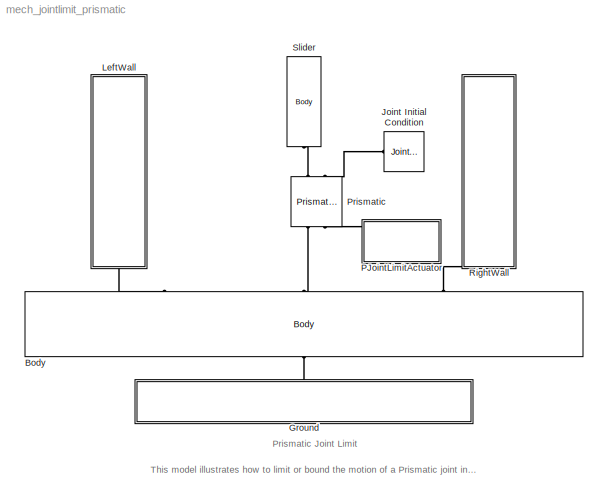
MODEL mech_jointlimit_prismatic
KIND model
BLOCK [Reference] Body  REF=mblibv1/Bodies/Body
  AttachedToCS = 1
  BodyColor = [0.5 0.5 0.5]
  CG = Right$CG$[0 0 0]$Adjoining$Adjoining$m$[0 0 0]$Euler X-Y-Z$deg$WORLD$true
  CGPos = [0 0 0]
  CGRot = [0 0 0]
  CS0Pos = []
  CS0Rot = []
  CS10Pos = []
  CS10Rot = []
  CS11Pos = []
  CS11Rot = []
  CS12Pos = []
  CS12Rot = []
  CS13Pos = []
  CS13Rot = []
  CS14Pos = []
  CS14Rot = []
  CS15Pos = []
  CS15Rot = []
  CS16Pos = []
  CS16Rot = []
  CS17Pos = []
  CS17Rot = []
  CS18Pos = []
  CS18Rot = []
  CS19Pos = []
  CS19Rot = []
  CS1Pos = [0 0 0]
  CS1Rot = [0 0 0]
  CS20Pos = []
  CS20Rot = []
  CS2Pos = [-1.5 0 0]
  CS2Rot = [0 0 0]
  CS3Pos = [1.5 -0.5 0]
  CS3Rot = [0 0 0]
  CS4Pos = [-1.5 -0.5 0]
  CS4Rot = [0 0 0]
  CS5Pos = [1.5 0 0]
  CS5Rot = [0 0 0]
  CS6Pos = []
  CS6Rot = []
  CS7Pos = []
  CS7Rot = []
  CS8Pos = []
  CS8Rot = []
  CS9Pos = []
  CS9Rot = []
  ClassName = Body
  Density = 1
  DensityUnits = kg/m^3
  DensityUse = false
  DialogClass = MechanicalBodyBlock
  DialogController = MECH.DynMechDlgSource
  GraphicsMode = 1
  GraphicsObj = []
  Inertia = [0.05 0 0;0 0.75 0;0 0 0.705]
  InertiaUnits = kg*m^2
  LConnTagsString = CS2|CS1|CS5
  LeftPortType = workingframe
  Mass = 1
  MassUnits = kg
  PhysicalDomain = mechanical
  Ports = [0, 0, 0, 0, 0, 3, 1]
  RConnTagsString = CG
  RightPortType = workingframe
  Shape = Cylinder
  ShapeDims = [1 1]
  ShapeUnits = m
  ShapeUse = false
  SourceBlock = mblibv1/Bodies/Body
  SourceType = Body
  SubClassName = Unknown
  WorkingFrames = Left$CS2$[-1.5 0 0]$CS1$CS1$m$[0 0 0]$Euler X-Y-Z$deg$WORLD$true#Left$CS1$[0 0 0]$CG$CG$m$[0 0 0]$Euler X-Y-Z$deg$WORLD$true#Right$CS4$[-1.5 -0.5 0]$CS1$CS1$m$[0 0 0]$Euler X-Y-Z$deg$WORLD$false#Right$CS3$[1.5 -0.5 0]$CS1$CS1$m$[0 0 0]$Euler X-Y-Z$deg$WORLD$false#Left$CS5$[1.5 0 0]$CS1$CS1$m$[0 0 0]$Euler X-Y-Z$deg$WORLD$true
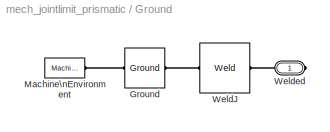
BLOCK [SubSystem] Ground
  FunctionWithSeparateData = off
  MaskHideContents = off
  MinAlgLoopOccurrences = off
  Opaque = off
  Ports = [0, 0, 0, 0, 0, 0, 1]
  PropExecContextOutsideSubsystem = off
  RTWSystemCode = Auto
  RequestExecContextInheritance = off
BLOCK [Reference] Ground/Ground  REF=mblibv1/Bodies/Ground
  ClassName = Ground
  CoordPosition = [0 0 0]
  CoordPositionUnits = m
  DialogClass = GroundBlock
  DialogController = MECH.DynMechDlgSource
  FunctionWithSeparateData = off
  LeftPortType = env
  MachineId = [0 0]
  PhysicalDomain = Mechanical
  Ports = [0, 0, 0, 0, 0, 1, 1]
  RTWMemSecDataConstants = Inherit from model
  RTWMemSecDataInternal = Inherit from model
  RTWMemSecDataParameters = Inherit from model
  RTWMemSecFuncExecute = Inherit from model
  RTWMemSecFuncInitTerm = Inherit from model
  RightPortType = workingframe
  ShowEnvPort = on
  ShowPortLabels = FromPortIcon
  SourceBlock = mblibv1/Bodies/Ground
  SourceType = Ground
  StateVectorMgrId = -1
  SystemSampleTime = -1
  UserData = DataTag0
  UserDataPersistent = on
BLOCK [Reference] Ground/Machine\nEnvironment  REF=mblibv1/Bodies/Machine\nEnvironment
  AnalysisType = Forward dynamics
  AngularAssemblyTolerance = 1e-3
  AngularAssemblyToleranceUnits = rad
  ClassName = Environment
  ConstraintAbsTolerance = 1e-4
  ConstraintRelTolerance = 1e-4
  ConstraintSolverType = Stabilizing
  DialogController = MECH.DialogSource
  DialogTemplateClass = MECH.MachineEnvironment
  Dimensionality = Auto-detect
  FunctionWithSeparateData = off
  Gravity = [0 -9.81 0]
  GravityAsSignal = off
  GravityUnits = m/s^2
  LinearAssemblyTolerance = 1e-3
  LinearAssemblyToleranceUnits = m
  PerturbationSize = 1e-5
  PhysicalDomain = Mechanical
  PortType = env
  Ports = [0, 0, 0, 0, 0, 0, 1]
  RTWMemSecDataConstants = Inherit from model
  RTWMemSecDataInternal = Inherit from model
  RTWMemSecDataParameters = Inherit from model
  RTWMemSecFuncExecute = Inherit from model
  RTWMemSecFuncInitTerm = Inherit from model
  RedundancyAnalysisTolerance = 1e-14
  RedundancyAnalysisToleranceType = Automatically select tolerance
  ShowPortLabels = FromPortIcon
  SourceBlock = mblibv1/Bodies/Machine\nEnvironment
  SourceType = Machine Environment
  StatePerturbationType = Fixed
  SyncWhenCopied = off
  SystemSampleTime = -1
  Tag = Factory ground
  UseRobustSingularityHandling = off
  VisualizeMachine = on
BLOCK [Reference] Ground/WeldJ  REF=mblibv1/Joints/Weld
  ClassName = Joint
  CutJoint = off
  DialogClass = JointBlock
  DialogController = MECH.DynMechDlgSource
  LConnTagsString = __newl0
  LeftPortType = blob
  MarkAsCut = off
  NumSAPorts = 0
  PhysicalDomain = mechanical
  Ports = [0, 0, 0, 0, 0, 1, 1]
  PrimitiveProps = W$WORLD$[0 0 0]$weld
  Primitives = weld
  RConnTagsString = __newr0
  RightPortType = blob
  SourceBlock = mblibv1/Joints/Weld
  SourceType = Weld
  SubClassName = Unknown
  WAxis = [0 0 0]
BLOCK [PMIOPort] Ground/Welded
  Port = 1
  Side = Right
BLOCK [Reference] Joint Initial Condition  REF=mblibv1/Sensors & \nActuators/Joint Initial Condition
  ClassName = InitialCondition
  DialogClass = InitialConditionBlock
  DialogController = MECH.DynMechDlgSource
  FunctionWithSeparateData = off
  InitialConditions = P1$true$0$m$deg$1$m/s$deg/s#P2$false$0$m$deg$0$m/s$deg/s#P3$false$0$m$deg$0$m/s$deg/s#R1$false$0$m$deg$0$m/s$deg/s#R2$false$0$m$deg$0$m/s$deg/s#R3$false$0$m$deg$0$m/s$deg/s#S$false$0$m$deg$0$m/s$deg/s
  P1PIC = 0
  P1VIC = 1
  P2PIC = 0
  P2VIC = 0
  P3PIC = 0
  P3VIC = 0
  PhysicalDomain = mechanical
  Ports = [0, 0, 0, 0, 0, 0, 1]
  R1PIC = 0
  R1VIC = 0
  R2PIC = 0
  R2VIC = 0
  R3PIC = 0
  R3VIC = 0
  RTWMemSecDataConstants = Inherit from model
  RTWMemSecDataInternal = Inherit from model
  RTWMemSecDataParameters = Inherit from model
  RTWMemSecFuncExecute = Inherit from model
  RTWMemSecFuncInitTerm = Inherit from model
  SPIC = 0
  SVIC = 0
  ShowPortLabels = FromPortIcon
  SourceBlock = mblibv1/Sensors & \nActuators/Joint Initial Condition
  SourceType = Joint Initial Condition
  SystemSampleTime = -1
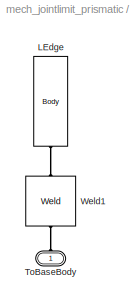
BLOCK [SubSystem] LeftWall
  FunctionWithSeparateData = off
  MaskHideContents = off
  MinAlgLoopOccurrences = off
  Opaque = off
  Ports = [0, 0, 0, 0, 0, 1]
  PropExecContextOutsideSubsystem = off
  RTWSystemCode = Auto
  RequestExecContextInheritance = off
BLOCK [Reference] LeftWall/LEdge  REF=mblibv1/Bodies/Body
  AttachedToCS = 1
  BodyColor = [0.5 0.5 0.5]
  CG = Right$CG$[0.4 0.5 0]$CS1$CS1$m$[0 0 0]$Euler X-Y-Z$deg$WORLD$false
  CGPos = [0.4 0.5 0]
  CGRot = [0 0 0]
  CS0Pos = []
  CS0Rot = []
  CS10Pos = []
  CS10Rot = []
  CS11Pos = []
  CS11Rot = []
  CS12Pos = []
  CS12Rot = []
  CS13Pos = []
  CS13Rot = []
  CS14Pos = []
  CS14Rot = []
  CS15Pos = []
  CS15Rot = []
  CS16Pos = []
  CS16Rot = []
  CS17Pos = []
  CS17Rot = []
  CS18Pos = []
  CS18Rot = []
  CS19Pos = []
  CS19Rot = []
  CS1Pos = [0 0 0]
  CS1Rot = [0 0 0]
  CS20Pos = []
  CS20Rot = []
  CS2Pos = [0 1 0]
  CS2Rot = [0 0 0]
  CS3Pos = [0.5 0 0]
  CS3Rot = [0 0 0]
  CS4Pos = [0.5 1 0]
  CS4Rot = [0 0 0]
  CS5Pos = []
  CS5Rot = []
  CS6Pos = []
  CS6Rot = []
  CS7Pos = []
  CS7Rot = []
  CS8Pos = []
  CS8Rot = []
  CS9Pos = []
  CS9Rot = []
  ClassName = Body
  Density = 1
  DensityUnits = kg/m^3
  DensityUse = false
  DialogClass = MechanicalBodyBlock
  DialogController = MECH.DynMechDlgSource
  GraphicsMode = 1
  GraphicsObj = []
  Inertia = [0.75 0 0;0 0.05 0;0 0 0.705]*0.02
  InertiaUnits = kg*m^2
  LeftPortType = workingframe
  Mass = 0.2
  MassUnits = kg
  PhysicalDomain = mechanical
  Ports = [0, 0, 0, 0, 0, 0, 1]
  RConnTagsString = CS1
  RightPortType = workingframe
  Shape = Cylinder
  ShapeDims = [1 1]
  ShapeUnits = m
  ShapeUse = false
  SourceBlock = mblibv1/Bodies/Body
  SourceType = Body
  SubClassName = Unknown
  WorkingFrames = Right$CS1$[0 0 0]$Adjoining$Adjoining$m$[0 0 0]$Euler X-Y-Z$deg$WORLD$true#Left$CS2$[0 1 0]$CS1$CS1$m$[0 0 0]$Euler X-Y-Z$deg$WORLD$false#Right$CS4$[0.5 1 0]$CS1$CS1$m$[0 0 0]$Euler X-Y-Z$deg$WORLD$false#Right$CS3$[0.5 0 0]$CS1$CS1$m$[0 0 0]$Euler X-Y-Z$deg$WORLD$false
BLOCK [PMIOPort] LeftWall/ToBaseBody
  Port = 1
  Side = Left
BLOCK [Reference] LeftWall/Weld1  REF=mblibv1/Joints/Weld
  ClassName = Joint
  CutJoint = off
  DialogClass = JointBlock
  DialogController = MECH.DynMechDlgSource
  LConnTagsString = __newl0
  LeftPortType = blob
  MarkAsCut = off
  NumSAPorts = 0
  PhysicalDomain = mechanical
  Ports = [0, 0, 0, 0, 0, 1, 1]
  PrimitiveProps = W$WORLD$[0 0 0]$weld
  Primitives = weld
  RConnTagsString = __newr0
  RightPortType = blob
  SourceBlock = mblibv1/Joints/Weld
  SourceType = Weld
  SubClassName = Unknown
  WAxis = [0 0 0]
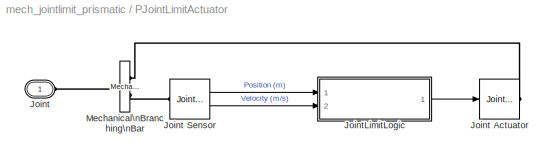
BLOCK [SubSystem] PJointLimitActuator
  FunctionWithSeparateData = off
  MaskCallbackString = ||||
  MaskEnableString = on,on,on,on,on
  MaskHideContents = off
  MaskIconFrame = on
  MaskIconOpaque = on
  MaskIconRotate = none
  MaskIconUnits = autoscale
  MaskPromptString = LHS Joint Limit (m)|RHS Joint Limit (m)|Penetration Depth (m)|Spring Constant (N/m)|Damping Constant (Ns/m)
  MaskStyleString = edit,edit,edit,edit,edit
  MaskTabNameString = ,,,,
  MaskToolTipString = on,on,on,on,on
  MaskTunableValueString = on,on,on,on,on
  MaskType = Joint Limit
  MaskValueString = 1|1|0.0005|2000|0.05
  MaskVarAliasString = ,,,,
  MaskVariables = LHSLimit=@1;RHSLimit=@2;penDepth=@3;springC=@4;dampC=@5;
  MaskVisibilityString = on,on,on,on,on
  MinAlgLoopOccurrences = off
  Opaque = off
  Ports = [0, 0, 0, 0, 0, 1]
  PropExecContextOutsideSubsystem = off
  RTWSystemCode = Auto
  RequestExecContextInheritance = off
BLOCK [PMIOPort] PJointLimitActuator/Joint
  Port = 1
  Side = Left
  Tag = PMCPort
BLOCK [Reference] PJointLimitActuator/Joint Actuator  REF=mblibv1/Sensors & \nActuators/Joint Actuator
  AccelerationUnits = m/s^2
  ActiveIO = on
  ActuationStyle = Force
  AngleUnits = deg
  ArcAccelerationUnits = deg/s^2
  ArcVelocityUnits = deg/s
  ClassName = JointActuator
  CoordPositionUnits = m
  DialogClass = MechanicalActuatorBlock
  DialogController = MECH.DynMechDlgSource
  ForceUnits = N
  FunctionWithSeparateData = off
  PhysicalDomain = Mechanical
  PortType = blob
  Ports = [1, 0, 0, 0, 0, 0, 1]
  Primitive = P1
  RTWMemSecDataConstants = Inherit from model
  RTWMemSecDataInternal = Inherit from model
  RTWMemSecDataParameters = Inherit from model
  RTWMemSecFuncExecute = Inherit from model
  RTWMemSecFuncInitTerm = Inherit from model
  ReferenceFrame = Absolute (INERTIAL)
  ShowPortLabels = FromPortIcon
  SourceBlock = mblibv1/Sensors & \nActuators/Joint Actuator
  SourceType = Joint Actuator
  SystemSampleTime = -1
  TorqueUnits = N*m
  VelocityUnits = m/s
  Width = 1
BLOCK [Reference] PJointLimitActuator/Joint Sensor  REF=mblibv1/Sensors & \nActuators/Joint Sensor
  Acceleration = off
  AccelerationUnits = m/s^2
  ActiveIO = on
  Angle = on
  AngleUnits = rad
  ArcAcceleration = off
  ArcAccelerationUnits = deg/s^2
  ArcVelocity = on
  ArcVelocityUnits = rad/s
  ClassName = JointSensor
  CoordPosition = on
  CoordPositionUnits = m
  DialogClass = MechanicalSensorBlock
  DialogController = MECH.DynMechDlgSource
  Force = off
  ForceUnits = N
  FunctionWithSeparateData = off
  Muxed = off
  OutputVector = [ 1 1 ]
  PhysicalDomain = Mechanical
  PortType = blob
  Ports = [0, 2, 0, 0, 0, 1]
  Pose = off
  Primitive = P1
  Quaternion = off
  QuaternionDDT = off
  QuaternionDT = off
  QuaternionUnits = off
  RTWMemSecDataConstants = Inherit from model
  RTWMemSecDataInternal = Inherit from model
  RTWMemSecDataParameters = Inherit from model
  RTWMemSecFuncExecute = Inherit from model
  RTWMemSecFuncInitTerm = Inherit from model
  ReactionForce = off
  ReactionForceUnits = N
  ReactionMoment = off
  ReactionMomentUnits = N*m
  ReactionReferenceFrame = Absolute (World)
  ReactionSensedSide = Base
  ReferenceFrame = Absolute (INERTIAL)
  ShowPortLabels = FromPortIcon
  SourceBlock = mblibv1/Sensors & \nActuators/Joint Sensor
  SourceType = Joint Sensor
  SystemSampleTime = -1
  Torque = off
  TorqueUnits = N*m
  Velocity = on
  VelocityUnits = m/s
  Width = 2
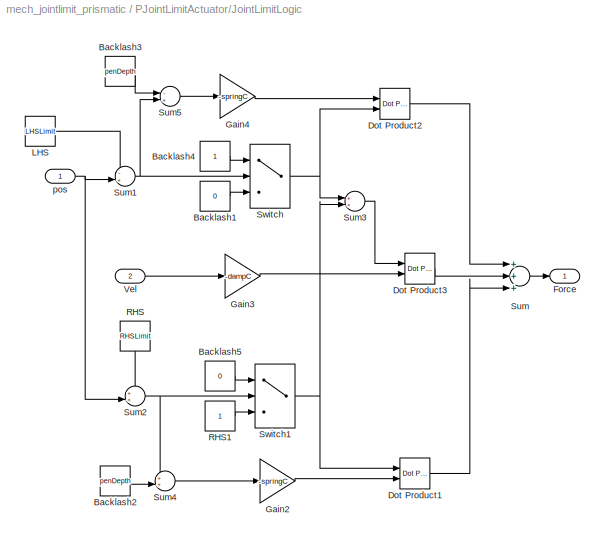
BLOCK [SubSystem] PJointLimitActuator/JointLimitLogic
  FunctionWithSeparateData = off
  MaskHideContents = off
  MinAlgLoopOccurrences = off
  Opaque = off
  Ports = [2, 1]
  PropExecContextOutsideSubsystem = off
  RTWSystemCode = Auto
  RequestExecContextInheritance = off
BLOCK [Constant] PJointLimitActuator/JointLimitLogic/Backlash1
  OutDataType = sfix(16)
  OutScaling = 2^0
  Value = 0
BLOCK [Constant] PJointLimitActuator/JointLimitLogic/Backlash2
  OutDataType = sfix(16)
  OutScaling = 2^0
  Value = penDepth
BLOCK [Constant] PJointLimitActuator/JointLimitLogic/Backlash3
  OutDataType = sfix(16)
  OutScaling = 2^0
  Value = penDepth
BLOCK [Constant] PJointLimitActuator/JointLimitLogic/Backlash4
  OutDataType = sfix(16)
  OutScaling = 2^0
BLOCK [Constant] PJointLimitActuator/JointLimitLogic/Backlash5
  OutDataType = sfix(16)
  OutScaling = 2^0
  Value = 0
BLOCK [Reference] PJointLimitActuator/JointLimitLogic/Dot Product1  REF=simulink/Math\nOperations/Dot Product
  DoSatur = off
  InputSameDT = on
  LockScale = off
  OutDataType = sfix(16)
  OutDataTypeStr = Inherit: Inherit via internal rule
  OutScaling = 2^-10
  OutputDataTypeScalingMode = Inherit via internal rule
  Ports = [2, 1]
  RndMeth = Floor
  SourceBlock = simulink/Math\nOperations/Dot Product
  SourceType = Dot Product
BLOCK [Reference] PJointLimitActuator/JointLimitLogic/Dot Product2  REF=simulink/Math\nOperations/Dot Product
  DoSatur = off
  InputSameDT = on
  LockScale = off
  OutDataType = sfix(16)
  OutDataTypeStr = Inherit: Inherit via internal rule
  OutScaling = 2^-10
  OutputDataTypeScalingMode = Inherit via internal rule
  Ports = [2, 1]
  RndMeth = Floor
  SourceBlock = simulink/Math\nOperations/Dot Product
  SourceType = Dot Product
BLOCK [Reference] PJointLimitActuator/JointLimitLogic/Dot Product3  REF=simulink/Math\nOperations/Dot Product
  DoSatur = off
  InputSameDT = on
  LockScale = off
  OutDataType = sfix(16)
  OutDataTypeStr = Inherit: Inherit via internal rule
  OutScaling = 2^-10
  OutputDataTypeScalingMode = Inherit via internal rule
  Ports = [2, 1]
  RndMeth = Floor
  SourceBlock = simulink/Math\nOperations/Dot Product
  SourceType = Dot Product
BLOCK [Outport] PJointLimitActuator/JointLimitLogic/Force
  IconDisplay = Port number
  OutDataType = sfix(16)
  OutScaling = 2^0
BLOCK [Gain] PJointLimitActuator/JointLimitLogic/Gain2
  Gain = -springC
  Multiplication = Matrix(K*u)
  OutDataType = sfix(16)
  OutScaling = 2^0
  ParameterDataType = sfix(16)
  ParameterScaling = 2^0
BLOCK [Gain] PJointLimitActuator/JointLimitLogic/Gain3
  Gain = -dampC
  Multiplication = Matrix(K*u)
  OutDataType = sfix(16)
  OutScaling = 2^0
  ParameterDataType = sfix(16)
  ParameterScaling = 2^0
BLOCK [Gain] PJointLimitActuator/JointLimitLogic/Gain4
  Gain = -springC
  Multiplication = Matrix(K*u)
  OutDataType = sfix(16)
  OutScaling = 2^0
  ParameterDataType = sfix(16)
  ParameterScaling = 2^0
BLOCK [Constant] PJointLimitActuator/JointLimitLogic/LHS
  OutDataType = sfix(16)
  OutScaling = 2^0
  Value = LHSLimit
BLOCK [Constant] PJointLimitActuator/JointLimitLogic/RHS
  OutDataType = sfix(16)
  OutScaling = 2^0
  Value = RHSLimit
BLOCK [Constant] PJointLimitActuator/JointLimitLogic/RHS1
  OutDataType = sfix(16)
  OutScaling = 2^0
BLOCK [Sum] PJointLimitActuator/JointLimitLogic/Sum
  InputSameDT = off
  Inputs = +++|
  OutDataType = sfix(16)
  OutDataTypeMode = Inherit via internal rule
  OutDataTypeStr = Inherit: Inherit via internal rule
  OutScaling = 2^0
  Ports = [3, 1]
BLOCK [Sum] PJointLimitActuator/JointLimitLogic/Sum1
  IconShape = round
  InputSameDT = off
  Inputs = -+|
  OutDataType = sfix(16)
  OutDataTypeMode = Inherit via internal rule
  OutDataTypeStr = Inherit: Inherit via internal rule
  OutScaling = 2^0
  Ports = [2, 1]
BLOCK [Sum] PJointLimitActuator/JointLimitLogic/Sum2
  IconShape = round
  InputSameDT = off
  Inputs = ++|
  OutDataType = sfix(16)
  OutDataTypeMode = Inherit via internal rule
  OutDataTypeStr = Inherit: Inherit via internal rule
  OutScaling = 2^0
  Ports = [2, 1]
BLOCK [Sum] PJointLimitActuator/JointLimitLogic/Sum3
  IconShape = round
  InputSameDT = off
  Inputs = ++|
  OutDataType = sfix(16)
  OutDataTypeMode = Inherit via internal rule
  OutDataTypeStr = Inherit: Inherit via internal rule
  OutScaling = 2^0
  Ports = [2, 1]
BLOCK [Sum] PJointLimitActuator/JointLimitLogic/Sum4
  IconShape = round
  InputSameDT = off
  Inputs = ++|
  OutDataType = sfix(16)
  OutDataTypeMode = Inherit via internal rule
  OutDataTypeStr = Inherit: Inherit via internal rule
  OutScaling = 2^0
  Ports = [2, 1]
BLOCK [Sum] PJointLimitActuator/JointLimitLogic/Sum5
  IconShape = round
  InputSameDT = off
  Inputs = -+|
  OutDataType = sfix(16)
  OutDataTypeMode = Inherit via internal rule
  OutDataTypeStr = Inherit: Inherit via internal rule
  OutScaling = 2^0
  Ports = [2, 1]
BLOCK [Switch] PJointLimitActuator/JointLimitLogic/Switch
  Criteria = u2 > Threshold
  InputSameDT = off
  SaturateOnIntegerOverflow = off
BLOCK [Switch] PJointLimitActuator/JointLimitLogic/Switch1
  Criteria = u2 > Threshold
  InputSameDT = off
  SaturateOnIntegerOverflow = off
BLOCK [Inport] PJointLimitActuator/JointLimitLogic/Vel
  IconDisplay = Port number
  OutDataType = sfix(16)
  OutScaling = 2^0
  Port = 2
BLOCK [Inport] PJointLimitActuator/JointLimitLogic/pos
  IconDisplay = Port number
  OutDataType = sfix(16)
  OutScaling = 2^0
BLOCK [Reference] PJointLimitActuator/Mechanical\nBranching\nBar  REF=mblibv1/Utilities/Mechanical\nBranching\nBar
  ClassName = BranchingBar
  DialogClass = MechanicalBranchingBarBlock
  DialogController = MECH.DynMechDlgSource
  LConnTagsString = _newl0
  LeftPortType = blob
  NumSAPorts = 2
  PhysicalDomain = mechanical
  Ports = [0, 0, 0, 0, 0, 1, 2]
  RConnTagsString = SA0|SA1
  RightPortType = blob
  SourceBlock = mblibv1/Utilities/Mechanical\nBranching\nBar
  SourceType = Mechanical Branching Bar
  SubClassName = Unknown
BLOCK [Reference] Prismatic  REF=mblibv1/Joints/Prismatic
  ClassName = Joint
  CutJoint = off
  DialogClass = JointBlock
  DialogController = MECH.DynMechDlgSource
  LConnTagsString = __newl0|SA1
  LeftPortType = blob
  MarkAsCut = off
  NumSAPorts = 2
  P1Axis = [1 0 0]
  PhysicalDomain = mechanical
  Ports = [0, 0, 0, 0, 0, 2, 2]
  PrimitiveProps = P1$World$[1 0 0]$prismatic
  Primitives = prismatic
  RConnTagsString = __newr0|SA1
  RightPortType = blob
  SourceBlock = mblibv1/Joints/Prismatic
  SourceType = Prismatic
  SubClassName = Unknown
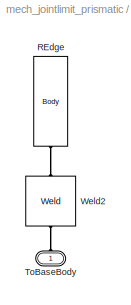
BLOCK [SubSystem] RightWall
  FunctionWithSeparateData = off
  MaskHideContents = off
  MinAlgLoopOccurrences = off
  Opaque = off
  Ports = [0, 0, 0, 0, 0, 1]
  PropExecContextOutsideSubsystem = off
  RTWSystemCode = Auto
  RequestExecContextInheritance = off
BLOCK [Reference] RightWall/REdge  REF=mblibv1/Bodies/Body
  AttachedToCS = 1
  BodyColor = [0.5 0.5 0.5]
  CG = Right$CG$[-0.4 0.5 0]$CS1$CS1$m$[0 0 0]$Euler X-Y-Z$deg$WORLD$false
  CGPos = [-0.4 0.5 0]
  CGRot = [0 0 0]
  CS0Pos = []
  CS0Rot = []
  CS10Pos = []
  CS10Rot = []
  CS11Pos = []
  CS11Rot = []
  CS12Pos = []
  CS12Rot = []
  CS13Pos = []
  CS13Rot = []
  CS14Pos = []
  CS14Rot = []
  CS15Pos = []
  CS15Rot = []
  CS16Pos = []
  CS16Rot = []
  CS17Pos = []
  CS17Rot = []
  CS18Pos = []
  CS18Rot = []
  CS19Pos = []
  CS19Rot = []
  CS1Pos = [0 0 0]
  CS1Rot = [0 0 0]
  CS20Pos = []
  CS20Rot = []
  CS2Pos = [0 1 0]
  CS2Rot = [0 0 0]
  CS3Pos = [-0.5 0 0]
  CS3Rot = [0 0 0]
  CS4Pos = [-0.5 1 0]
  CS4Rot = [0 0 0]
  CS5Pos = []
  CS5Rot = []
  CS6Pos = []
  CS6Rot = []
  CS7Pos = []
  CS7Rot = []
  CS8Pos = []
  CS8Rot = []
  CS9Pos = []
  CS9Rot = []
  ClassName = Body
  Density = 1
  DensityUnits = kg/m^3
  DensityUse = false
  DialogClass = MechanicalBodyBlock
  DialogController = MECH.DynMechDlgSource
  GraphicsMode = 1
  GraphicsObj = []
  Inertia = [0.75 0 0;0 0.05 0;0 0 0.705]*0.02
  InertiaUnits = kg*m^2
  LeftPortType = workingframe
  Mass = 0.2
  MassUnits = kg
  PhysicalDomain = mechanical
  Ports = [0, 0, 0, 0, 0, 0, 1]
  RConnTagsString = CS1
  RightPortType = workingframe
  Shape = Cylinder
  ShapeDims = [1 1]
  ShapeUnits = m
  ShapeUse = false
  SourceBlock = mblibv1/Bodies/Body
  SourceType = Body
  SubClassName = Unknown
  WorkingFrames = Right$CS1$[0 0 0]$Adjoining$Adjoining$m$[0 0 0]$Euler X-Y-Z$deg$WORLD$true#Left$CS2$[0 1 0]$CS1$CS1$m$[0 0 0]$Euler X-Y-Z$deg$WORLD$false#Right$CS4$[-0.5 1 0]$CS1$CS1$m$[0 0 0]$Euler X-Y-Z$deg$WORLD$false#Right$CS3$[-0.5 0 0]$CS1$CS1$m$[0 0 0]$Euler X-Y-Z$deg$WORLD$false
BLOCK [PMIOPort] RightWall/ToBaseBody
  Port = 1
  Side = Left
BLOCK [Reference] RightWall/Weld2  REF=mblibv1/Joints/Weld
  ClassName = Joint
  CutJoint = off
  DialogClass = JointBlock
  DialogController = MECH.DynMechDlgSource
  LConnTagsString = __newl0
  LeftPortType = blob
  MarkAsCut = off
  NumSAPorts = 0
  PhysicalDomain = mechanical
  Ports = [0, 0, 0, 0, 0, 1, 1]
  PrimitiveProps = W$WORLD$[0 0 0]$weld
  Primitives = weld
  RConnTagsString = __newr0
  RightPortType = blob
  SourceBlock = mblibv1/Joints/Weld
  SourceType = Weld
  SubClassName = Unknown
  WAxis = [0 0 0]
BLOCK [Reference] Slider  REF=mblibv1/Bodies/Body
  AttachedToCS = 1
  BodyColor = [0.5 0.5 0.5]
  CG = Right$CG$[0 0.625 0]$CS1$CS1$m$[0 0 0]$Euler X-Y-Z$deg$WORLD$false
  CGPos = [0 0.625 0]
  CGRot = [0 0 0]
  CS0Pos = []
  CS0Rot = []
  CS10Pos = []
  CS10Rot = []
  CS11Pos = []
  CS11Rot = []
  CS12Pos = []
  CS12Rot = []
  CS13Pos = []
  CS13Rot = []
  CS14Pos = []
  CS14Rot = []
  CS15Pos = []
  CS15Rot = []
  CS16Pos = []
  CS16Rot = []
  CS17Pos = []
  CS17Rot = []
  CS18Pos = []
  CS18Rot = []
  CS19Pos = []
  CS19Rot = []
  CS1Pos = [0 0 0]
  CS1Rot = [0 0 0]
  CS20Pos = []
  CS20Rot = []
  CS2Pos = [0 1.25 0]
  CS2Rot = [0 0 0]
  CS3Pos = []
  CS3Rot = []
  CS4Pos = []
  CS4Rot = []
  CS5Pos = []
  CS5Rot = []
  CS6Pos = []
  CS6Rot = []
  CS7Pos = []
  CS7Rot = []
  CS8Pos = []
  CS8Rot = []
  CS9Pos = []
  CS9Rot = []
  ClassName = Body
  Density = 1
  DensityUnits = kg/m^3
  DensityUse = false
  DialogClass = MechanicalBodyBlock
  DialogController = MECH.DynMechDlgSource
  GraphicsMode = 1
  GraphicsObj = []
  Inertia = [0.75 0 0;0 0.05 0;0 0 0.705]*0.035
  InertiaUnits = kg*m^2
  LeftPortType = workingframe
  Mass = 0.25
  MassUnits = kg
  PhysicalDomain = mechanical
  Ports = [0, 0, 0, 0, 0, 0, 1]
  RConnTagsString = CS1
  RightPortType = workingframe
  Shape = Cylinder
  ShapeDims = [1 1]
  ShapeUnits = m
  ShapeUse = false
  SourceBlock = mblibv1/Bodies/Body
  SourceType = Body
  SubClassName = Unknown
  WorkingFrames = Right$CS1$[0 0 0]$Adjoining$Adjoining$m$[0 0 0]$Euler X-Y-Z$deg$WORLD$true#Left$CS2$[0 1.25 0]$CS1$CS1$m$[0 0 0]$Euler X-Y-Z$deg$WORLD$false
ANNOTATION (root): Prismatic Joint Limit
ANNOTATION (root): This model illustrates how to limit or bound the motion of a Prismatic joint in SimMechanics.
LINE PJointLimitActuator/Joint Sensor:1 -> PJointLimitActuator/JointLimitLogic:1
LINE PJointLimitActuator/Joint Sensor:2 -> PJointLimitActuator/JointLimitLogic:2
LINE PJointLimitActuator/JointLimitLogic/Backlash1:1 -> PJointLimitActuator/JointLimitLogic/Switch:3
LINE PJointLimitActuator/JointLimitLogic/Backlash2:1 -> PJointLimitActuator/JointLimitLogic/Sum4:2
LINE PJointLimitActuator/JointLimitLogic/Backlash3:1 -> PJointLimitActuator/JointLimitLogic/Sum5:1
LINE PJointLimitActuator/JointLimitLogic/Backlash4:1 -> PJointLimitActuator/JointLimitLogic/Switch:1
LINE PJointLimitActuator/JointLimitLogic/Backlash5:1 -> PJointLimitActuator/JointLimitLogic/Switch1:1
LINE PJointLimitActuator/JointLimitLogic/Dot Product1:1 -> PJointLimitActuator/JointLimitLogic/Sum:3
LINE PJointLimitActuator/JointLimitLogic/Dot Product2:1 -> PJointLimitActuator/JointLimitLogic/Sum:1
LINE PJointLimitActuator/JointLimitLogic/Dot Product3:1 -> PJointLimitActuator/JointLimitLogic/Sum:2
LINE PJointLimitActuator/JointLimitLogic/Gain2:1 -> PJointLimitActuator/JointLimitLogic/Dot Product1:2
LINE PJointLimitActuator/JointLimitLogic/Gain3:1 -> PJointLimitActuator/JointLimitLogic/Dot Product3:2
LINE PJointLimitActuator/JointLimitLogic/Gain4:1 -> PJointLimitActuator/JointLimitLogic/Dot Product2:1
LINE PJointLimitActuator/JointLimitLogic/LHS:1 -> PJointLimitActuator/JointLimitLogic/Sum1:1
LINE PJointLimitActuator/JointLimitLogic/RHS1:1 -> PJointLimitActuator/JointLimitLogic/Switch1:3
LINE PJointLimitActuator/JointLimitLogic/RHS:1 -> PJointLimitActuator/JointLimitLogic/Sum2:1
NET PJointLimitActuator/JointLimitLogic/Sum1:1 -> PJointLimitActuator/JointLimitLogic/Sum5:2, PJointLimitActuator/JointLimitLogic/Switch:2
NET PJointLimitActuator/JointLimitLogic/Sum2:1 -> PJointLimitActuator/JointLimitLogic/Sum4:1, PJointLimitActuator/JointLimitLogic/Switch1:2
LINE PJointLimitActuator/JointLimitLogic/Sum3:1 -> PJointLimitActuator/JointLimitLogic/Dot Product3:1
LINE PJointLimitActuator/JointLimitLogic/Sum4:1 -> PJointLimitActuator/JointLimitLogic/Gain2:1
LINE PJointLimitActuator/JointLimitLogic/Sum5:1 -> PJointLimitActuator/JointLimitLogic/Gain4:1
LINE PJointLimitActuator/JointLimitLogic/Sum:1 -> PJointLimitActuator/JointLimitLogic/Force:1
NET PJointLimitActuator/JointLimitLogic/Switch1:1 -> PJointLimitActuator/JointLimitLogic/Dot Product1:1, PJointLimitActuator/JointLimitLogic/Sum3:2
NET PJointLimitActuator/JointLimitLogic/Switch:1 -> PJointLimitActuator/JointLimitLogic/Dot Product2:2, PJointLimitActuator/JointLimitLogic/Sum3:1
LINE PJointLimitActuator/JointLimitLogic/Vel:1 -> PJointLimitActuator/JointLimitLogic/Gain3:1
NET PJointLimitActuator/JointLimitLogic/pos:1 -> PJointLimitActuator/JointLimitLogic/Sum1:2, PJointLimitActuator/JointLimitLogic/Sum2:2
LINE PJointLimitActuator/JointLimitLogic:1 -> PJointLimitActuator/Joint Actuator:1
PLINE Body:LConn1 -- LeftWall:LConn1
PLINE Body:LConn2 -- Prismatic:LConn1
PLINE Body:LConn3 -- RightWall:LConn1
PLINE Body:RConn1 -- Ground:RConn1
PLINE Ground/Ground:LConn1 -- Ground/Machine\nEnvironment:RConn1
PLINE Ground/Ground:RConn1 -- Ground/WeldJ:LConn1
PLINE Ground/WeldJ:RConn1 -- Ground/Welded:RConn1
PLINE Joint Initial Condition:RConn1 -- Prismatic:RConn2
PLINE LeftWall/LEdge:RConn1 -- LeftWall/Weld1:RConn1
PLINE LeftWall/ToBaseBody:RConn1 -- LeftWall/Weld1:LConn1
PLINE PJointLimitActuator/Joint Actuator:RConn1 -- PJointLimitActuator/Mechanical\nBranching\nBar:RConn1
PLINE PJointLimitActuator/Joint Sensor:LConn1 -- PJointLimitActuator/Mechanical\nBranching\nBar:RConn2
PLINE PJointLimitActuator/Joint:RConn1 -- PJointLimitActuator/Mechanical\nBranching\nBar:LConn1
PLINE PJointLimitActuator:LConn1 -- Prismatic:LConn2
PLINE Prismatic:RConn1 -- Slider:RConn1
PLINE RightWall/REdge:RConn1 -- RightWall/Weld2:RConn1
PLINE RightWall/ToBaseBody:RConn1 -- RightWall/Weld2:LConn1
note: NET lines group one-source signal fan-out (src -> all destinations, sorted); 1:1 wires keep LINE
